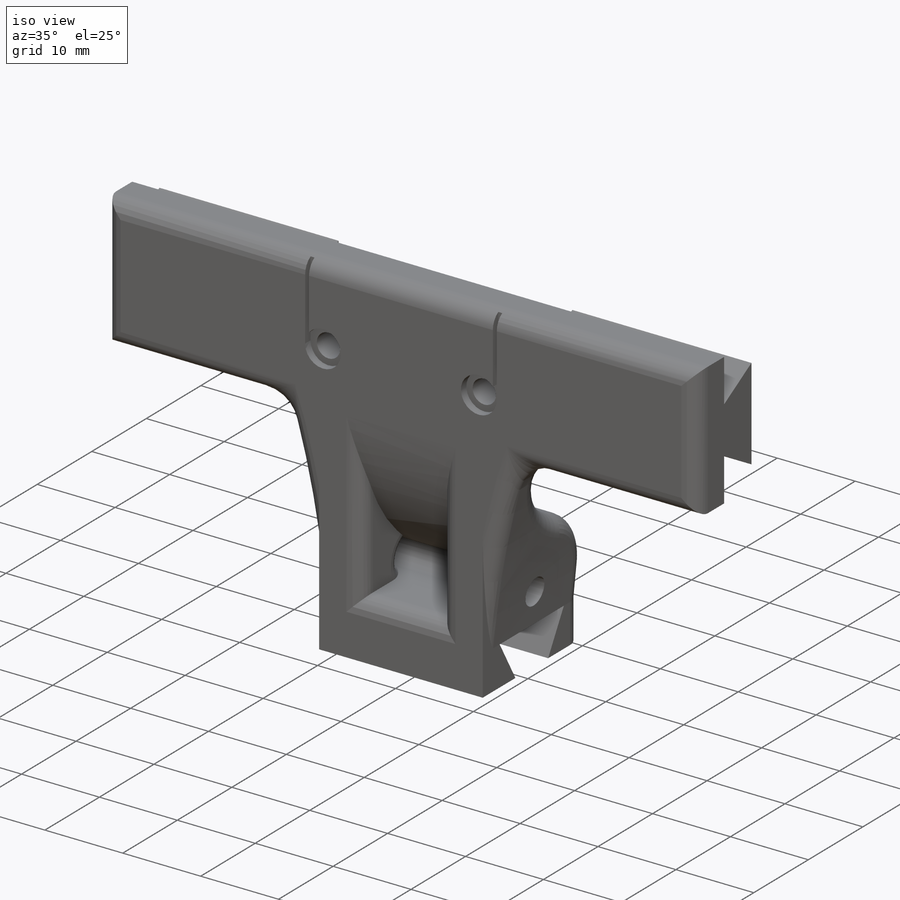
[diagram: iso view]
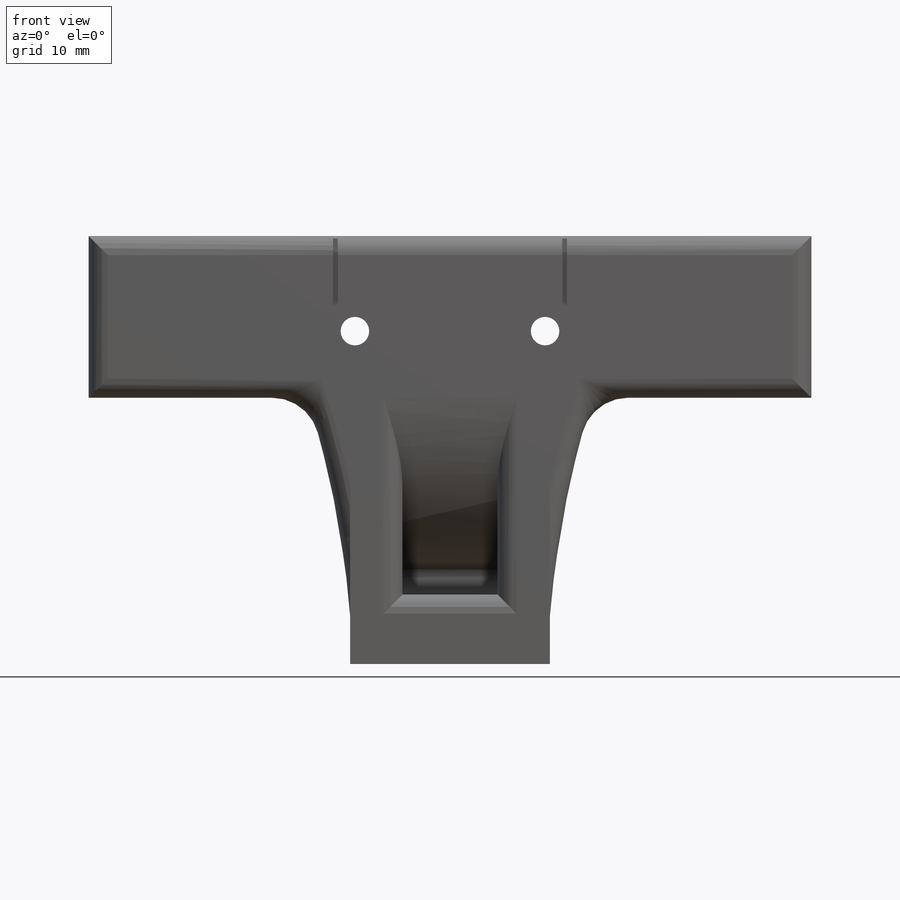
[diagram: front view]
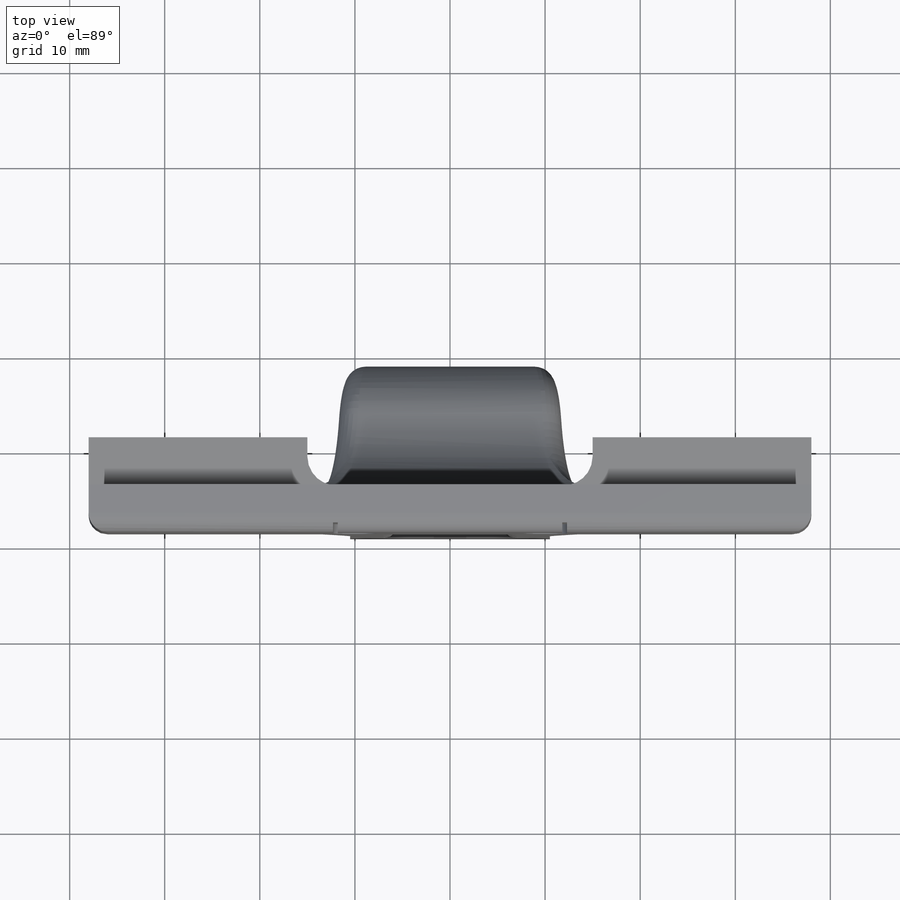
[diagram: top view]
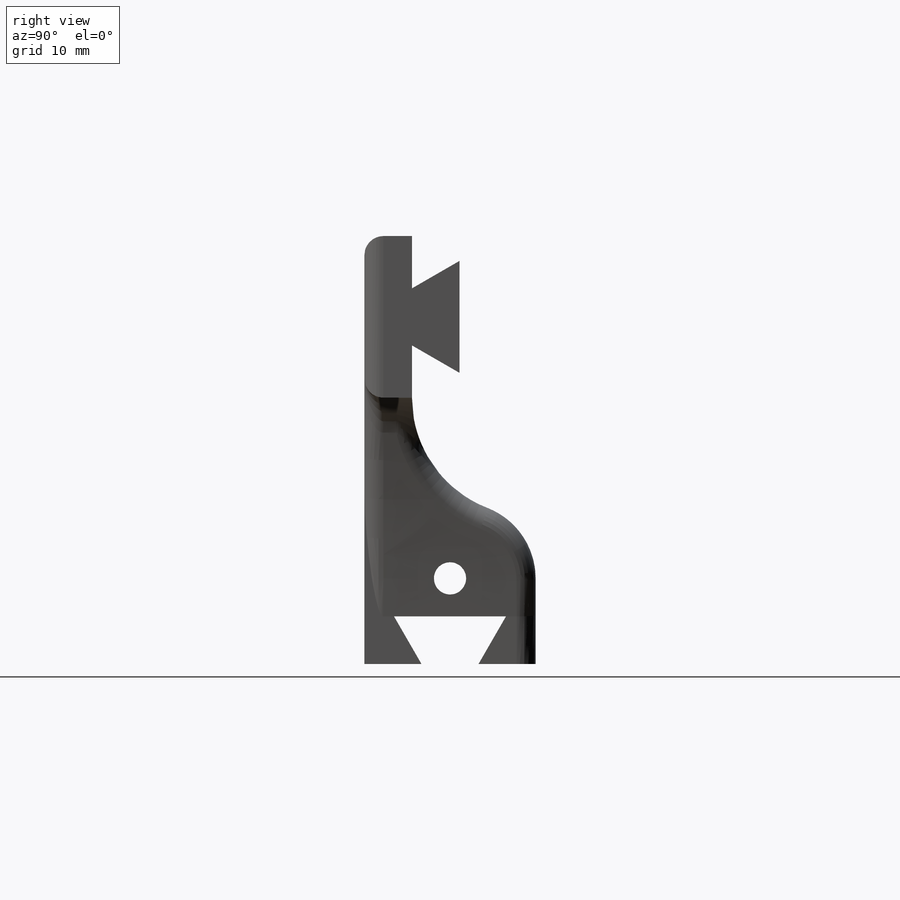
[diagram: right view]
SOLIDWORKS PART (.sldprt)
format: sldprt  version: not decoded by parser v0  size: 487,936 bytes
history: native  units: mm
features: sketch x10, extrude x5, cut_extrude x5, fillet x3, material x1 (+11 scaffold rows collapsed)
feature tree (35):
  scaffold x11  (default folders/planes/origin — collapsed)
  material  "ABS"
  sketch  "Sketch1"  dims[c1.D2=20.0mm c1.D1=21.0mm c1.D3=40.0mm c1.D4=17.0mm c1.D5=23.0mm c2.D2=30.0mm]
  extrude  "Extrude1"  Depth=18mm
  sketch  "Sketch2"  dims[c1.D1=6.0mm c1.D2=5.0mm c1.D3=~5.752278mm c2.D3=60.0deg c2.D1=6.0mm c3.D3=~2.47956mm c4.D3=60.0deg]
  extrude  "Extrude2"  [1 undecoded]
  sketch  "Sketch3"  dims[D1=3.4mm D2=4.0mm]
  cut_extrude  "Extrude3"  [1 undecoded]
  extrude  "Extrude4"  [1 undecoded]
  sketch  "Sketch1<4>"  dims[D1=5.0mm]
  sketch  "Sketch4"  dims[c1.D1=6.0mm c1.D2=5.0mm c1.D3=~5.304057mm c2.D3=60.0deg]
  extrude  "Extrude5"  [1 undecoded]
  extrude  "Extrude6"  [1 undecoded]
  sketch  "Sketch4<2>"
  sketch  "Sketch5"  dims[D2=3.0mm D4=4.6mm D1=10.0mm D3=20.0mm D5=0.5mm D6=0.5mm]
  cut_extrude  "Extrude7"  [1 undecoded]
  cut_extrude  "Extrude8"  [1 undecoded]
  sketch  "Sketch5<4>"  dims[D1=1.0mm]
  sketch  "Sketch7"  dims[D1=5.0mm]
  cut_extrude  "Extrude9"  [1 undecoded]
  sketch  "Sketch8"
  cut_extrude  "Extrude10"  Depth=10mm
  fillet  "Fillet1"  Radius=2mm
  fillet  "Fillet2"  Radius=5mm
  fillet  "Fillet3"  Radius=3mm
decode coverage: 13 of 23 modeling features carry decoded parameters
note: ~ marks probable driven/reference dimensions
note: 8 parameter values undecoded
summary: no parameter record found for 8 features
note: suppression state not decoded; provenance and decode notes live in map.json
